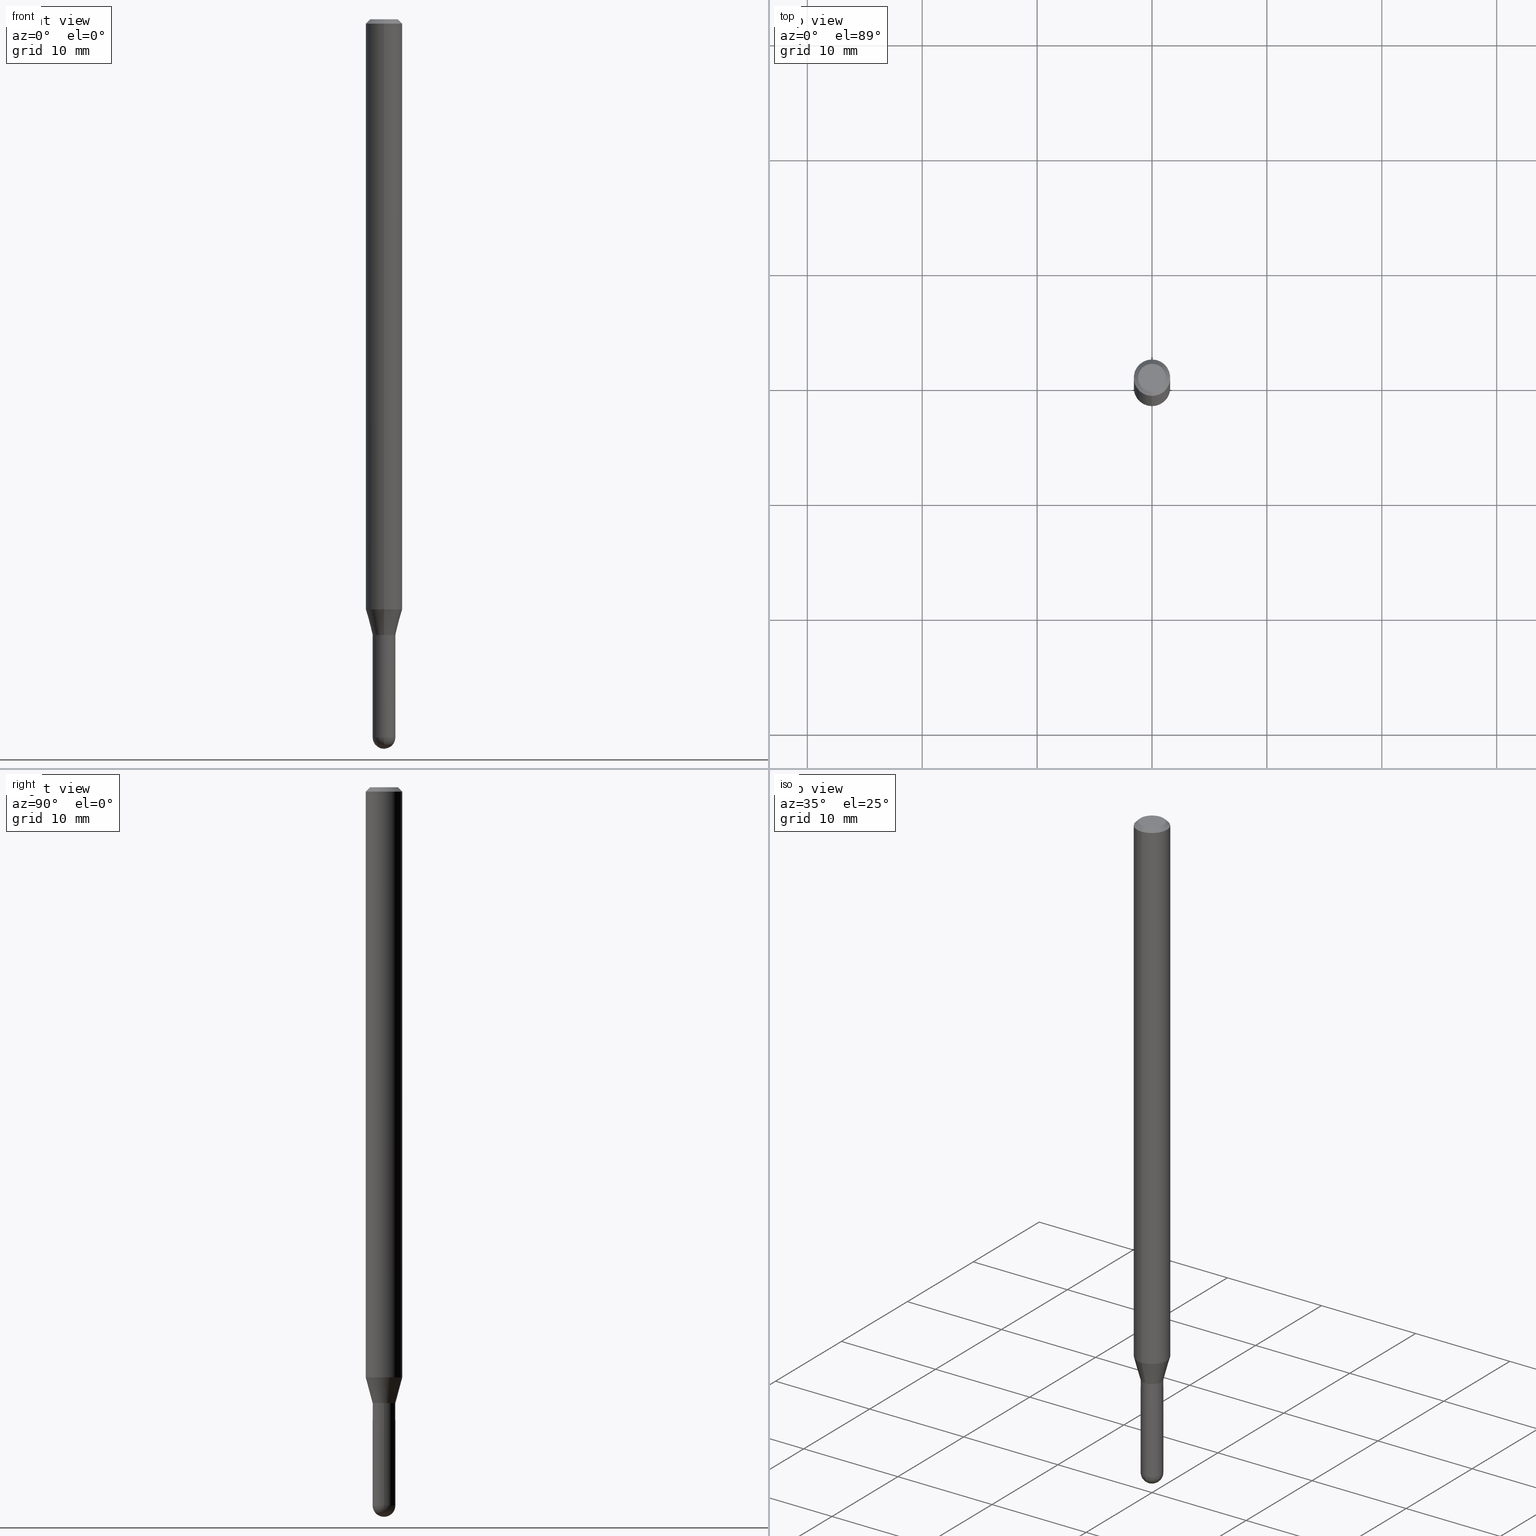
[diagram: canonical four-view strip — front | top / right | iso, engineering-drawing reading convention]
A machine part, canonical four-view strip (front | top / right | iso — engineering-drawing reading convention). The complete STEP part file that produces these views, byte-faithful:
ISO-10303-21;
HEADER;
FILE_DESCRIPTION (( 'STEP AP203' ),
    '1' );
FILE_NAME ('01516.STEP',
    '2024-03-07T19:36:13',
    ( '' ),
    ( '' ),
    'SwSTEP 2.0',
    'SolidWorks 2023',
    '' );
FILE_SCHEMA (( 'CONFIG_CONTROL_DESIGN' ));
ENDSEC;

DATA;
#1 = APPROVAL ( #183, 'UNSPECIFIED' ) ;
#2 = CARTESIAN_POINT ( 'NONE',  ( 4.440892098501117228E-16, 0.06249999999999289457, -2.022296806022132909 ) ) ;
#3 = VERTEX_POINT ( 'NONE', #70 ) ;
#4 = PERSON_AND_ORGANIZATION_ROLE ( 'creator' ) ;
#5 = AXIS2_PLACEMENT_3D ( 'NONE', #364, #484, #50 ) ;
#6 = CIRCLE ( 'NONE', #311, 0.03899999999999989586 ) ;
#7 = CARTESIAN_POINT ( 'NONE',  ( 0.03899999999999999994, -7.639361169388800962E-15, -2.110000000000000320 ) ) ;
#8 = EDGE_CURVE ( 'NONE', #512, #275, #246, .T. ) ;
#9 = DIRECTION ( 'NONE',  ( -1.000000000000000000, 6.982962677686265922E-15, -4.876176775795935793E-29 ) ) ;
#10 = AXIS2_PLACEMENT_3D ( 'NONE', #74, #266, #345 ) ;
#11 = CARTESIAN_POINT ( 'NONE',  ( 6.014963583493821915E-29, -8.597311697409657438E-15, -2.461000000000000298 ) ) ;
#12 = VERTEX_POINT ( 'NONE', #7 ) ;
#13 = DIRECTION ( 'NONE',  ( -7.105427357601000281E-15, -1.000000000000000000, 0.000000000000000000 ) ) ;
#14 = APPLICATION_PROTOCOL_DEFINITION ( 'international standard', 'config_control_design', 1994, #334 ) ;
#15 = CALENDAR_DATE ( 2024, 7, 3 ) ;
#16 = EDGE_LOOP ( 'NONE', ( #295, #110 ) ) ;
#17 = PERSON_AND_ORGANIZATION ( #310, #289 ) ;
#18 = CIRCLE ( 'NONE', #82, 0.04749999999999999362 ) ;
#19 = EDGE_CURVE ( 'NONE', #3, #379, #166, .T. ) ;
#20 = CIRCLE ( 'NONE', #294, 0.06250000000000000000 ) ;
#21 = LOCAL_TIME ( 14, 36, 13.00000000000000000, #328 ) ;
#22 = CARTESIAN_POINT ( 'NONE',  ( 5.160006538123281826E-29, -7.366929165797283704E-15, -2.109999999999999876 ) ) ;
#23 = FACE_OUTER_BOUND ( 'NONE', #504, .T. ) ;
#24 = CYLINDRICAL_SURFACE ( 'NONE', #65, 0.03899999999999999994 ) ;
#25 = MANIFOLD_SOLID_BREP ( 'Body-Move/Copy2[1]', #200 ) ;
#26 = CARTESIAN_POINT ( 'NONE',  ( 2.753353101070910328E-16, 0.03849999999999263040, -2.109999999999999876 ) ) ;
#27 = VERTEX_POINT ( 'NONE', #378 ) ;
#28 = FACE_OUTER_BOUND ( 'NONE', #240, .T. ) ;
#29 = EDGE_LOOP ( 'NONE', ( #387, #259, #470, #199 ) ) ;
#30 = EDGE_LOOP ( 'NONE', ( #238, #463 ) ) ;
#31 = AXIS2_PLACEMENT_3D ( 'NONE', #305, #261, #419 ) ;
#32 = CIRCLE ( 'NONE', #327, 0.03899999999999999994 ) ;
#33 = DIRECTION ( 'NONE',  ( -2.445500728968379930E-29, 3.491435623600608667E-15, 1.000000000000000000 ) ) ;
#34 = ADVANCED_FACE ( 'NONE', ( #335 ), #503, .T. ) ;
#35 = DIRECTION ( 'NONE',  ( -2.445500728968379930E-29, 3.491435623600608667E-15, 1.000000000000000000 ) ) ;
#36 = CONICAL_SURFACE ( 'NONE', #404, 0.03849999999999999256, 0.7853981633980202659 ) ;
#37 = LINE ( 'NONE', #282, #139 ) ;
#38 = DIRECTION ( 'NONE',  ( -1.000000000000000000, 6.982962677686265922E-15, -4.883557194083112340E-29 ) ) ;
#39 = CARTESIAN_POINT ( 'NONE',  ( 5.160006538123282947E-29, -7.366929165797283704E-15, -2.110000000000000320 ) ) ;
#40 = DIRECTION ( 'NONE',  ( -2.445500728968380210E-29, 3.491435623600608667E-15, 1.000000000000000000 ) ) ;
#41 = PERSON_AND_ORGANIZATION_ROLE ( 'design_owner' ) ;
#42 = EDGE_CURVE ( 'NONE', #420, #12, #501, .T. ) ;
#43 = CIRCLE ( 'NONE', #10, 0.03900000000000019423 ) ;
#44 = AXIS2_PLACEMENT_3D ( 'NONE', #147, #381, #71 ) ;
#45 = CARTESIAN_POINT ( 'NONE',  ( 3.668251093452573101E-31, -5.237153435400915910E-17, -0.01500000000000000812 ) ) ;
#46 = AXIS2_PLACEMENT_3D ( 'NONE', #11, #176, #13 ) ;
#47 = AXIS2_PLACEMENT_3D ( 'NONE', #257, #389, #274 ) ;
#48 = EDGE_CURVE ( 'NONE', #3, #396, #37, .T. ) ;
#49 = CARTESIAN_POINT ( 'NONE',  ( 3.606004383983001233E-16, 0.03899999999999227696, -2.110000000000000320 ) ) ;
#50 = DIRECTION ( 'NONE',  ( -6.982962677686265922E-15, -1.000000000000000000, 0.000000000000000000 ) ) ;
#51 = ORIENTED_EDGE ( 'NONE', *, *, #333, .F. ) ;
#52 = PERSON_AND_ORGANIZATION_ROLE ( 'creator' ) ;
#53 = ORIENTED_EDGE ( 'NONE', *, *, #56, .F. ) ;
#54 = UNCERTAINTY_MEASURE_WITH_UNIT (LENGTH_MEASURE( 1.000000000000000082E-05 ), #407, 'distance_accuracy_value', 'NONE');
#55 = APPROVAL_DATE_TIME ( #360, #1 ) ;
#56 = EDGE_CURVE ( 'NONE', #446, #450, #175, .T. ) ;
#57 = APPROVAL_STATUS ( 'not_yet_approved' ) ;
#58 = CYLINDRICAL_SURFACE ( 'NONE', #320, 0.03899999999999992362 ) ;
#59 = DIRECTION ( 'NONE',  ( 1.000000000000000000, -6.982962677686258033E-15, 0.000000000000000000 ) ) ;
#60 = COORDINATED_UNIVERSAL_TIME_OFFSET ( 5, 0, .BEHIND. ) ;
#61 = LINE ( 'NONE', #344, #362 ) ;
#62 = ORIENTED_EDGE ( 'NONE', *, *, #242, .F. ) ;
#63 = AXIS2_PLACEMENT_3D ( 'NONE', #235, #276, #510 ) ;
#64 = EDGE_CURVE ( 'NONE', #446, #396, #312, .T. ) ;
#65 = AXIS2_PLACEMENT_3D ( 'NONE', #346, #283, #264 ) ;
#66 = DIRECTION ( 'NONE',  ( 2.445500728968380210E-29, -3.491435623600608667E-15, -1.000000000000000000 ) ) ;
#67 = ORIENTED_EDGE ( 'NONE', *, *, #350, .T. ) ;
#68 = DIRECTION ( 'NONE',  ( -2.445500728968379930E-29, 3.491435623600608667E-15, 1.000000000000000000 ) ) ;
#69 = DIRECTION ( 'NONE',  ( -6.982962677686265922E-15, -1.000000000000000000, 3.491435623600608273E-15 ) ) ;
#70 = CARTESIAN_POINT ( 'NONE',  ( -3.773273898774340269E-16, -0.04749999999999999362, 1.569807010551772762E-16 ) ) ;
#71 = DIRECTION ( 'NONE',  ( -6.982962677686265922E-15, -1.000000000000000000, 3.483106191921935554E-15 ) ) ;
#72 = ADVANCED_FACE ( 'NONE', ( #205 ), #116, .F. ) ;
#73 = ORIENTED_EDGE ( 'NONE', *, *, #374, .F. ) ;
#74 = CARTESIAN_POINT ( 'NONE',  ( 5.158783787758798639E-29, -7.365183447985484793E-15, -2.109500000000000153 ) ) ;
#75 = CARTESIAN_POINT ( 'NONE',  ( -2.723355444297638258E-16, -0.03899999999999992362, 1.361659893204234562E-16 ) ) ;
#76 = CARTESIAN_POINT ( 'NONE',  ( -0.03899999999999999994, -7.702668932979569039E-15, -2.110000000000000320 ) ) ;
#77 = CIRCLE ( 'NONE', #367, 0.03899999999999999994 ) ;
#78 = ORIENTED_EDGE ( 'NONE', *, *, #117, .F. ) ;
#79 = DIRECTION ( 'NONE',  ( 6.982962677686265922E-15, 1.000000000000000000, -3.483106191921935554E-15 ) ) ;
#80 = DIRECTION ( 'NONE',  ( -6.982962677686266711E-15, -1.000000000000000000, 0.000000000000000000 ) ) ;
#81 = CARTESIAN_POINT ( 'NONE',  ( 6.018298732021620914E-29, -8.592535574892981353E-15, -2.460999999999999854 ) ) ;
#82 = AXIS2_PLACEMENT_3D ( 'NONE', #217, #88, #437 ) ;
#83 = ORIENTED_EDGE ( 'NONE', *, *, #278, .T. ) ;
#84 =( NAMED_UNIT ( * ) PLANE_ANGLE_UNIT ( ) SI_UNIT ( $, .RADIAN. ) );
#85 = CARTESIAN_POINT ( 'NONE',  ( 6.014963583493821915E-29, -8.597311697409657438E-15, -2.461000000000000298 ) ) ;
#86 = APPROVAL_STATUS ( 'not_yet_approved' ) ;
#87 = EDGE_CURVE ( 'NONE', #390, #97, #216, .T. ) ;
#88 = DIRECTION ( 'NONE',  ( -2.445500728968380210E-29, 3.491435623600608667E-15, 1.000000000000000000 ) ) ;
#89 = CIRCLE ( 'NONE', #339, 0.03900000000000019423 ) ;
#90 = DIRECTION ( 'NONE',  ( -6.982962677686265922E-15, -1.000000000000000000, 3.491435623600608667E-15 ) ) ;
#91 = CC_DESIGN_PERSON_AND_ORGANIZATION_ASSIGNMENT ( #128, #41, ( #358 ) ) ;
#92 = DIRECTION ( 'NONE',  ( -2.445500728968380210E-29, 3.491435623600608667E-15, 1.000000000000000000 ) ) ;
#93 = AXIS2_PLACEMENT_3D ( 'NONE', #122, #191, #193 ) ;
#94 = CC_DESIGN_SECURITY_CLASSIFICATION ( #480, ( #323 ) ) ;
#95 = DATE_AND_TIME ( #448, #21 ) ;
#96 = APPLICATION_CONTEXT ( 'configuration controlled 3d designs of mechanical parts and assemblies' ) ;
#97 = VERTEX_POINT ( 'NONE', #430 ) ;
#98 = PERSON_AND_ORGANIZATION ( #310, #289 ) ;
#99 = ORIENTED_EDGE ( 'NONE', *, *, #443, .T. ) ;
#100 = ORIENTED_EDGE ( 'NONE', *, *, #366, .T. ) ;
#101 = DIRECTION ( 'NONE',  ( 1.000000000000000000, -6.982962677686283277E-15, 0.000000000000000000 ) ) ;
#102 = VECTOR ( 'NONE', #483, 39.37007874015748143 ) ;
#103 = PRODUCT_RELATED_PRODUCT_CATEGORY ( 'detail', '', ( #358 ) ) ;
#104 = VERTEX_POINT ( 'NONE', #76 ) ;
#105 = SHAPE_DEFINITION_REPRESENTATION ( #107, #194 ) ;
#106 = LINE ( 'NONE', #431, #113 ) ;
#107 = PRODUCT_DEFINITION_SHAPE ( 'NONE', 'NONE',  #253 ) ;
#108 = ADVANCED_FACE ( 'NONE', ( #414 ), #58, .F. ) ;
#109 = ORIENTED_EDGE ( 'NONE', *, *, #42, .F. ) ;
#110 = ORIENTED_EDGE ( 'NONE', *, *, #87, .F. ) ;
#111 = CARTESIAN_POINT ( 'NONE',  ( 2.735589532676900905E-16, 0.03849999999999263040, -2.109999999999999876 ) ) ;
#112 = DIRECTION ( 'NONE',  ( -2.445500728968379930E-29, 3.491435623600608667E-15, 1.000000000000000000 ) ) ;
#113 = VECTOR ( 'NONE', #68, 39.37007874015748143 ) ;
#114 = DIRECTION ( 'NONE',  ( -1.000000000000000000, 6.982962677686265922E-15, -4.883557194083112340E-29 ) ) ;
#115 = AXIS2_PLACEMENT_3D ( 'NONE', #120, #66, #79 ) ;
#116 = CYLINDRICAL_SURFACE ( 'NONE', #432, 0.03899999999999992362 ) ;
#117 = EDGE_CURVE ( 'NONE', #195, #27, #280, .T. ) ;
#118 = EDGE_LOOP ( 'NONE', ( #220, #203, #439, #109, #119 ) ) ;
#119 = ORIENTED_EDGE ( 'NONE', *, *, #247, .T. ) ;
#120 = CARTESIAN_POINT ( 'NONE',  ( 3.668251093452573101E-31, -5.237153435400915910E-17, -0.01500000000000000812 ) ) ;
#121 = DIRECTION ( 'NONE',  ( -2.445500728968380210E-29, 3.491435623600608667E-15, 1.000000000000000000 ) ) ;
#122 = CARTESIAN_POINT ( 'NONE',  ( 0.000000000000000000, 0.000000000000000000, 0.000000000000000000 ) ) ;
#123 = CIRCLE ( 'NONE', #408, 0.03899999999999999994 ) ;
#124 = LENGTH_MEASURE_WITH_UNIT ( LENGTH_MEASURE( 0.02539999999999999897 ), #479 );
#125 = APPROVAL_DATE_TIME ( #95, #270 ) ;
#126 = EDGE_CURVE ( 'NONE', #104, #12, #230, .T. ) ;
#127 = FACE_OUTER_BOUND ( 'NONE', #465, .T. ) ;
#128 = PERSON_AND_ORGANIZATION ( #310, #289 ) ;
#129 = CARTESIAN_POINT ( 'NONE',  ( 5.158783787758798639E-29, -7.365183447985484793E-15, -2.109500000000000153 ) ) ;
#130 = AXIS2_PLACEMENT_3D ( 'NONE', #81, #302, #332 ) ;
#131 = CARTESIAN_POINT ( 'NONE',  ( -0.03899999999999999994, -7.702668932979569039E-15, -2.460999999999999854 ) ) ;
#132 = ADVANCED_FACE ( 'NONE', ( #498 ), #142, .F. ) ;
#133 = ADVANCED_FACE ( 'NONE', ( #23 ), #226, .T. ) ;
#134 = COORDINATED_UNIVERSAL_TIME_OFFSET ( 5, 0, .BEHIND. ) ;
#135 = VERTEX_POINT ( 'NONE', #343 ) ;
#136 = CARTESIAN_POINT ( 'NONE',  ( 0.000000000000000000, 0.000000000000000000, 0.000000000000000000 ) ) ;
#137 = DIRECTION ( 'NONE',  ( -2.445468806185136597E-29, 3.491481338843145583E-15, 1.000000000000000000 ) ) ;
#138 = CC_DESIGN_DATE_AND_TIME_ASSIGNMENT ( #329, #411, ( #253 ) ) ;
#139 = VECTOR ( 'NONE', #359, 39.37007874015748143 ) ;
#140 = ORIENTED_EDGE ( 'NONE', *, *, #48, .F. ) ;
#141 = EDGE_CURVE ( 'NONE', #275, #446, #500, .T. ) ;
#142 = PLANE ( 'NONE',  #31 ) ;
#143 = ORIENTED_EDGE ( 'NONE', *, *, #315, .T. ) ;
#144 = CARTESIAN_POINT ( 'NONE',  ( 2.167322836201587067E-46, -3.094281702115643648E-32, -8.862491065851607924E-18 ) ) ;
#145 = CARTESIAN_POINT ( 'NONE',  ( 3.840629472727447874E-16, 0.04749999999999999362, -1.747056831868805136E-16 ) ) ;
#146 = ORIENTED_EDGE ( 'NONE', *, *, #227, .T. ) ;
#147 = CARTESIAN_POINT ( 'NONE',  ( 3.668251093452573101E-31, -5.237153435400915910E-17, -0.01500000000000000812 ) ) ;
#148 = ORIENTED_EDGE ( 'NONE', *, *, #315, .F. ) ;
#149 = ADVANCED_FACE ( 'NONE', ( #368 ), #447, .T. ) ;
#150 = LOCAL_TIME ( 14, 36, 13.00000000000000000, #134 ) ;
#151 = VECTOR ( 'NONE', #467, 39.37007874015748143 ) ;
#152 = ORIENTED_EDGE ( 'NONE', *, *, #181, .T. ) ;
#153 = CARTESIAN_POINT ( 'NONE',  ( 2.771116669464384311E-16, 0.03899999999999992362, -1.361659893204234562E-16 ) ) ;
#154 = AXIS2_PLACEMENT_3D ( 'NONE', #505, #458, #313 ) ;
#155 = ORIENTED_EDGE ( 'NONE', *, *, #366, .F. ) ;
#156 = CIRCLE ( 'NONE', #290, 0.03849999999999999256 ) ;
#157 = CARTESIAN_POINT ( 'NONE',  ( -4.364351673553916201E-16, -0.06250000000000000000, 2.182147264750380417E-16 ) ) ;
#158 = FACE_OUTER_BOUND ( 'NONE', #219, .T. ) ;
#159 = VERTEX_POINT ( 'NONE', #131 ) ;
#160 = FACE_OUTER_BOUND ( 'NONE', #118, .T. ) ;
#161 = LINE ( 'NONE', #75, #380 ) ;
#162 = CC_DESIGN_PERSON_AND_ORGANIZATION_ASSIGNMENT ( #98, #221, ( #323 ) ) ;
#163 = EDGE_LOOP ( 'NONE', ( #51, #449, #471, #239 ) ) ;
#164 = CARTESIAN_POINT ( 'NONE',  ( 6.014963583493821915E-29, -8.597311697409657438E-15, -2.461000000000000298 ) ) ;
#165 = DIRECTION ( 'NONE',  ( 1.000000000000000000, -6.982962677686265922E-15, 4.883557194083112340E-29 ) ) ;
#166 = CIRCLE ( 'NONE', #338, 0.04749999999999999362 ) ;
#167 = ORIENTED_EDGE ( 'NONE', *, *, #438, .T. ) ;
#168 = COORDINATED_UNIVERSAL_TIME_OFFSET ( 5, 0, .BEHIND. ) ;
#169 = ADVANCED_FACE ( 'NONE', ( #250 ), #215, .F. ) ;
#170 = DIRECTION ( 'NONE',  ( -2.445500728968380210E-29, 3.491435623600608667E-15, 1.000000000000000000 ) ) ;
#171 = MECHANICAL_CONTEXT ( 'NONE', #96, 'mechanical' ) ;
#172 = ADVANCED_FACE ( 'NONE', ( #218 ), #444, .T. ) ;
#173 = DIRECTION ( 'NONE',  ( -2.445500728968380210E-29, 3.491435623600608667E-15, 1.000000000000000000 ) ) ;
#174 = APPROVAL_PERSON_ORGANIZATION ( #415, #373, #337 ) ;
#175 = CIRCLE ( 'NONE', #476, 0.06250000000000000000 ) ;
#176 = DIRECTION ( 'NONE',  ( -1.000000000000000000, 7.105427357601001070E-15, -4.926315508542082329E-29 ) ) ;
#177 = VECTOR ( 'NONE', #232, 39.37007874015748854 ) ;
#178 = PERSON_AND_ORGANIZATION ( #310, #289 ) ;
#179 = ORIENTED_EDGE ( 'NONE', *, *, #117, .T. ) ;
#180 = ORIENTED_EDGE ( 'NONE', *, *, #64, .F. ) ;
#181 = EDGE_CURVE ( 'NONE', #490, #396, #20, .T. ) ;
#182 = CIRCLE ( 'NONE', #44, 0.06250000000000000000 ) ;
#183 = APPROVAL_STATUS ( 'not_yet_approved' ) ;
#184 = CC_DESIGN_DATE_AND_TIME_ASSIGNMENT ( #377, #263, ( #480 ) ) ;
#185 = ADVANCED_FACE ( 'NONE', ( #435 ), #457, .F. ) ;
#186 = ORIENTED_EDGE ( 'NONE', *, *, #287, .F. ) ;
#187 = AXIS2_PLACEMENT_3D ( 'NONE', #39, #170, #285 ) ;
#188 = SPHERICAL_SURFACE ( 'NONE', #330, 0.03899999999999989586 ) ;
#189 = DIRECTION ( 'NONE',  ( 6.982962677686265922E-15, 1.000000000000000000, -3.483106191921935554E-15 ) ) ;
#190 = ORIENTED_EDGE ( 'NONE', *, *, #227, .F. ) ;
#191 = DIRECTION ( 'NONE',  ( -2.445468806185136597E-29, 3.491481338843145583E-15, 1.000000000000000000 ) ) ;
#192 = EDGE_CURVE ( 'NONE', #331, #135, #43, .T. ) ;
#193 = DIRECTION ( 'NONE',  ( 1.000000000000000000, -6.982962677686265922E-15, 4.876176775795935793E-29 ) ) ;
#194 = ADVANCED_BREP_SHAPE_REPRESENTATION ( '01516', ( #25, #365, #258 ), #509 ) ;
#195 = VERTEX_POINT ( 'NONE', #385 ) ;
#196 = CARTESIAN_POINT ( 'NONE',  ( -4.364351673553912750E-16, -0.06250000000000005551, -0.01499999999999979128 ) ) ;
#197 = ORIENTED_EDGE ( 'NONE', *, *, #278, .F. ) ;
#198 = EDGE_LOOP ( 'NONE', ( #155, #489, #400, #383 ) ) ;
#199 = ORIENTED_EDGE ( 'NONE', *, *, #192, .T. ) ;
#200 = CLOSED_SHELL ( 'NONE', ( #301, #341, #169, #363, #34 ) ) ;
#201 = CARTESIAN_POINT ( 'NONE',  ( 0.03899999999999999994, -2.723355444297643682E-16, 1.901708942560414931E-30 ) ) ;
#202 = LINE ( 'NONE', #153, #248 ) ;
#203 = ORIENTED_EDGE ( 'NONE', *, *, #374, .T. ) ;
#204 = VECTOR ( 'NONE', #319, 39.37007874015748143 ) ;
#205 = FACE_OUTER_BOUND ( 'NONE', #29, .T. ) ;
#206 = DIRECTION ( 'NONE',  ( -6.982962677686265922E-15, -1.000000000000000000, 4.370956789862821150E-15 ) ) ;
#207 = COORDINATED_UNIVERSAL_TIME_OFFSET ( 5, 0, .BEHIND. ) ;
#208 = VERTEX_POINT ( 'NONE', #391 ) ;
#209 = CC_DESIGN_APPROVAL ( #270, ( #323 ) ) ;
#210 = AXIS2_PLACEMENT_3D ( 'NONE', #291, #409, #9 ) ;
#211 = DIRECTION ( 'NONE',  ( 1.000000000000000000, 0.000000000000000000, 0.000000000000000000 ) ) ;
#212 = LOCAL_TIME ( 14, 36, 13.00000000000000000, #168 ) ;
#213 = EDGE_CURVE ( 'NONE', #12, #104, #77, .T. ) ;
#214 = CARTESIAN_POINT ( 'NONE',  ( 0.000000000000000000, 0.000000000000000000, 0.000000000000000000 ) ) ;
#215 = PLANE ( 'NONE',  #210 ) ;
#216 = CIRCLE ( 'NONE', #63, 0.03849999999999999256 ) ;
#217 = CARTESIAN_POINT ( 'NONE',  ( 2.167322836201587067E-46, -3.094281702115643648E-32, -8.862491065851607924E-18 ) ) ;
#218 = FACE_OUTER_BOUND ( 'NONE', #198, .T. ) ;
#219 = EDGE_LOOP ( 'NONE', ( #148, #397, #99, #197 ) ) ;
#220 = ORIENTED_EDGE ( 'NONE', *, *, #287, .T. ) ;
#221 = PERSON_AND_ORGANIZATION_ROLE ( 'design_supplier' ) ;
#222 = EDGE_CURVE ( 'NONE', #275, #512, #406, .T. ) ;
#223 = ORIENTED_EDGE ( 'NONE', *, *, #477, .F. ) ;
#224 = FACE_OUTER_BOUND ( 'NONE', #306, .T. ) ;
#225 = CALENDAR_DATE ( 2024, 7, 3 ) ;
#226 = CONICAL_SURFACE ( 'NONE', #421, 0.06250000000000000000, 0.7853981633974483900 ) ;
#227 = EDGE_CURVE ( 'NONE', #195, #208, #6, .T. ) ;
#228 = SPHERICAL_SURFACE ( 'NONE', #487, 0.03899999999999989586 ) ;
#229 = CARTESIAN_POINT ( 'NONE',  ( 3.668251093452573101E-31, -5.237153435400915910E-17, -0.01500000000000000812 ) ) ;
#230 = CIRCLE ( 'NONE', #395, 0.03899999999999999994 ) ;
#231 = ADVANCED_FACE ( 'NONE', ( #127 ), #403, .T. ) ;
#232 = DIRECTION ( 'NONE',  ( -4.937700262167370586E-15, -0.7071067811869493624, 0.7071067811861454500 ) ) ;
#233 = DIRECTION ( 'NONE',  ( -2.445500728968380210E-29, 3.491435623600608667E-15, 1.000000000000000000 ) ) ;
#234 = ORIENTED_EDGE ( 'NONE', *, *, #333, .T. ) ;
#235 = CARTESIAN_POINT ( 'NONE',  ( 5.160006538123281826E-29, -7.366929165797283704E-15, -2.109999999999999876 ) ) ;
#236 = LINE ( 'NONE', #309, #254 ) ;
#237 = CARTESIAN_POINT ( 'NONE',  ( -2.723355444297103312E-16, -0.03900000000000701517, -2.110000000000000320 ) ) ;
#238 = ORIENTED_EDGE ( 'NONE', *, *, #493, .T. ) ;
#239 = ORIENTED_EDGE ( 'NONE', *, *, #461, .F. ) ;
#240 = EDGE_LOOP ( 'NONE', ( #190, #179, #317, #186 ) ) ;
#241 = CARTESIAN_POINT ( 'NONE',  ( 4.945528313317552606E-29, -7.060719110039404630E-15, -2.022296806022132909 ) ) ;
#242 = EDGE_CURVE ( 'NONE', #275, #331, #161, .T. ) ;
#243 = CARTESIAN_POINT ( 'NONE',  ( 5.160006538123282947E-29, -7.366929165797283704E-15, -2.110000000000000320 ) ) ;
#244 = DIRECTION ( 'NONE',  ( -2.445500728968380210E-29, 3.491435623600608667E-15, 1.000000000000000000 ) ) ;
#245 = DIRECTION ( 'NONE',  ( 0.000000000000000000, 0.000000000000000000, 1.000000000000000000 ) ) ;
#246 = CIRCLE ( 'NONE', #495, 0.03899999999999964606 ) ;
#247 = EDGE_CURVE ( 'NONE', #420, #208, #434, .T. ) ;
#248 = VECTOR ( 'NONE', #33, 39.37007874015748143 ) ;
#249 = DIRECTION ( 'NONE',  ( 1.000000000000000000, -6.982962677686283277E-15, 0.000000000000000000 ) ) ;
#250 = FACE_OUTER_BOUND ( 'NONE', #433, .T. ) ;
#251 = CLOSED_SHELL ( 'NONE', ( #108, #293, #454, #417, #231, #149, #172, #133, #132, #185, #405, #72 ) ) ;
#252 = AXIS2_PLACEMENT_3D ( 'NONE', #376, #318, #80 ) ;
#253 = PRODUCT_DEFINITION ( 'UNKNOWN', '', #323, #507 ) ;
#254 = VECTOR ( 'NONE', #424, 39.37007874015748143 ) ;
#255 = ORIENTED_EDGE ( 'NONE', *, *, #247, .F. ) ;
#256 = EDGE_CURVE ( 'NONE', #159, #27, #32, .T. ) ;
#257 = CARTESIAN_POINT ( 'NONE',  ( 6.018298732021620914E-29, -8.592535574892981353E-15, -2.460999999999999854 ) ) ;
#258 = AXIS2_PLACEMENT_3D ( 'NONE', #475, #245, #211 ) ;
#259 = ORIENTED_EDGE ( 'NONE', *, *, #222, .F. ) ;
#260 = CYLINDRICAL_SURFACE ( 'NONE', #154, 0.06250000000000000000 ) ;
#261 = DIRECTION ( 'NONE',  ( 2.445500728968379930E-29, -3.491435623600608667E-15, -1.000000000000000000 ) ) ;
#262 = ORIENTED_EDGE ( 'NONE', *, *, #443, .F. ) ;
#263 = DATE_TIME_ROLE ( 'classification_date' ) ;
#264 = DIRECTION ( 'NONE',  ( 1.000000000000000000, -6.982962677686265922E-15, 4.876176775795935793E-29 ) ) ;
#265 = AXIS2_PLACEMENT_3D ( 'NONE', #399, #112, #269 ) ;
#266 = DIRECTION ( 'NONE',  ( -2.445500728968380210E-29, 3.491435623600608667E-15, 1.000000000000000000 ) ) ;
#267 = EDGE_CURVE ( 'NONE', #27, #420, #281, .T. ) ;
#268 = FACE_OUTER_BOUND ( 'NONE', #494, .T. ) ;
#269 = DIRECTION ( 'NONE',  ( -6.982962677686265922E-15, -1.000000000000000000, 3.491435623600608667E-15 ) ) ;
#270 = APPROVAL ( #86, 'UNSPECIFIED' ) ;
#271 = CARTESIAN_POINT ( 'NONE',  ( 0.000000000000000000, 0.000000000000000000, 0.000000000000000000 ) ) ;
#272 = ORIENTED_EDGE ( 'NONE', *, *, #126, .T. ) ;
#273 = CARTESIAN_POINT ( 'NONE',  ( 6.014963583493821915E-29, -8.597311697409657438E-15, -2.461000000000000298 ) ) ;
#274 = DIRECTION ( 'NONE',  ( 1.000000000000000000, -6.982962677686283277E-15, 0.000000000000000000 ) ) ;
#275 = VERTEX_POINT ( 'NONE', #237 ) ;
#276 = DIRECTION ( 'NONE',  ( -2.445500728968380210E-29, 3.491435623600608667E-15, 1.000000000000000000 ) ) ;
#277 = LINE ( 'NONE', #111, #322 ) ;
#278 = EDGE_CURVE ( 'NONE', #135, #331, #89, .T. ) ;
#279 = EDGE_LOOP ( 'NONE', ( #73, #348, #297, #351, #459 ) ) ;
#280 = CIRCLE ( 'NONE', #46, 0.03899999999999989586 ) ;
#281 = CIRCLE ( 'NONE', #47, 0.03899999999999999994 ) ;
#282 = CARTESIAN_POINT ( 'NONE',  ( -4.287811248607203282E-16, -0.06250000000000005551, -0.01499999999999979128 ) ) ;
#283 = DIRECTION ( 'NONE',  ( -2.445468806185136597E-29, 3.491481338843145583E-15, 1.000000000000000000 ) ) ;
#284 = CONICAL_SURFACE ( 'NONE', #115, 0.06250000000000000000, 0.7853981633974483900 ) ;
#285 = DIRECTION ( 'NONE',  ( -6.982962677686265922E-15, -1.000000000000000000, 0.000000000000000000 ) ) ;
#286 = PERSON_AND_ORGANIZATION ( #310, #289 ) ;
#287 = EDGE_CURVE ( 'NONE', #208, #159, #123, .T. ) ;
#288 =( NAMED_UNIT ( * ) SI_UNIT ( $, .STERADIAN. ) SOLID_ANGLE_UNIT ( ) );
#289 = ORGANIZATION ( 'UNSPECIFIED', 'UNSPECIFIED', '' ) ;
#290 = AXIS2_PLACEMENT_3D ( 'NONE', #347, #233, #422 ) ;
#291 = CARTESIAN_POINT ( 'NONE',  ( 2.723355444298159400E-16, 0.03899999999999263084, -2.110000000000000320 ) ) ;
#292 = CARTESIAN_POINT ( 'NONE',  ( -2.723355444297103312E-16, -0.03900000000000701517, -2.110000000000000320 ) ) ;
#293 = ADVANCED_FACE ( 'NONE', ( #224 ), #478, .T. ) ;
#294 = AXIS2_PLACEMENT_3D ( 'NONE', #45, #121, #460 ) ;
#295 = ORIENTED_EDGE ( 'NONE', *, *, #402, .F. ) ;
#296 = DIMENSIONAL_EXPONENTS ( 1.000000000000000000, 0.000000000000000000, 0.000000000000000000, 0.000000000000000000, 0.000000000000000000, 0.000000000000000000, 0.000000000000000000 ) ;
#297 = ORIENTED_EDGE ( 'NONE', *, *, #267, .T. ) ;
#298 = PERSON_AND_ORGANIZATION ( #310, #289 ) ;
#299 = ORIENTED_EDGE ( 'NONE', *, *, #477, .T. ) ;
#300 = DIRECTION ( 'NONE',  ( -2.445500728968380210E-29, 3.491435623600608667E-15, 1.000000000000000000 ) ) ;
#301 = ADVANCED_FACE ( 'NONE', ( #160 ), #24, .T. ) ;
#302 = DIRECTION ( 'NONE',  ( -2.445468806185136597E-29, 3.491481338843145583E-15, 1.000000000000000000 ) ) ;
#303 = AXIS2_PLACEMENT_3D ( 'NONE', #214, #173, #90 ) ;
#304 = CC_DESIGN_PERSON_AND_ORGANIZATION_ASSIGNMENT ( #286, #52, ( #323 ) ) ;
#305 = CARTESIAN_POINT ( 'NONE',  ( 3.316907271900976096E-16, 0.04749999999999999362, -1.702744376539547043E-16 ) ) ;
#306 = EDGE_LOOP ( 'NONE', ( #508, #143, #355, #262 ) ) ;
#307 = ORIENTED_EDGE ( 'NONE', *, *, #48, .T. ) ;
#308 = CARTESIAN_POINT ( 'NONE',  ( -2.723355444297150644E-16, -0.03900000000000769518, -2.109500000000000153 ) ) ;
#309 = CARTESIAN_POINT ( 'NONE',  ( -0.03899999999999999994, 2.771116669464390721E-16, -1.918384685199413078E-30 ) ) ;
#310 = PERSON ( 'UNSPECIFIED', 'UNSPECIFIED', 'UNSPECIFIED', ('UNSPECIFIED'), ('UNSPECIFIED'), ('UNSPECIFIED') ) ;
#311 = AXIS2_PLACEMENT_3D ( 'NONE', #85, #165, #326 ) ;
#312 = LINE ( 'NONE', #157, #151 ) ;
#313 = DIRECTION ( 'NONE',  ( -6.982962677686265922E-15, -1.000000000000000000, 3.491435623600608667E-15 ) ) ;
#314 = ORIENTED_EDGE ( 'NONE', *, *, #56, .T. ) ;
#315 = EDGE_CURVE ( 'NONE', #390, #135, #277, .T. ) ;
#316 = CARTESIAN_POINT ( 'NONE',  ( -4.364351673553424642E-16, -0.06250000000000709155, -2.022296806022132465 ) ) ;
#317 = ORIENTED_EDGE ( 'NONE', *, *, #256, .F. ) ;
#318 = DIRECTION ( 'NONE',  ( -2.445500728968380210E-29, 3.491435623600608667E-15, 1.000000000000000000 ) ) ;
#319 = DIRECTION ( 'NONE',  ( 4.937700262164548042E-15, 0.7071067811865451302, -0.7071067811865499042 ) ) ;
#320 = AXIS2_PLACEMENT_3D ( 'NONE', #136, #452, #370 ) ;
#321 = LOCAL_TIME ( 14, 36, 13.00000000000000000, #60 ) ;
#322 = VECTOR ( 'NONE', #388, 39.37007874015748854 ) ;
#323 = PRODUCT_DEFINITION_FORMATION_WITH_SPECIFIED_SOURCE ( 'ANY', '', #358, .NOT_KNOWN. ) ;
#324 = AXIS2_PLACEMENT_3D ( 'NONE', #243, #244, #429 ) ;
#325 = APPROVAL_ROLE ( '' ) ;
#326 = DIRECTION ( 'NONE',  ( 6.982962677686265922E-15, 1.000000000000000000, 0.000000000000000000 ) ) ;
#327 = AXIS2_PLACEMENT_3D ( 'NONE', #492, #137, #101 ) ;
#328 = COORDINATED_UNIVERSAL_TIME_OFFSET ( 5, 0, .BEHIND. ) ;
#329 = DATE_AND_TIME ( #488, #212 ) ;
#330 = AXIS2_PLACEMENT_3D ( 'NONE', #164, #38, #426 ) ;
#331 = VERTEX_POINT ( 'NONE', #308 ) ;
#332 = DIRECTION ( 'NONE',  ( 1.000000000000000000, -6.982962677686283277E-15, 0.000000000000000000 ) ) ;
#333 = EDGE_CURVE ( 'NONE', #512, #450, #61, .T. ) ;
#334 = APPLICATION_CONTEXT ( 'configuration controlled 3d designs of mechanical parts and assemblies' ) ;
#335 = FACE_OUTER_BOUND ( 'NONE', #279, .T. ) ;
#336 = CC_DESIGN_PERSON_AND_ORGANIZATION_ASSIGNMENT ( #17, #440, ( #480 ) ) ;
#337 = APPROVAL_ROLE ( '' ) ;
#338 = AXIS2_PLACEMENT_3D ( 'NONE', #144, #300, #451 ) ;
#339 = AXIS2_PLACEMENT_3D ( 'NONE', #129, #442, #482 ) ;
#340 = DIRECTION ( 'NONE',  ( -2.445468806185136597E-29, 3.491481338843145583E-15, 1.000000000000000000 ) ) ;
#341 = ADVANCED_FACE ( 'NONE', ( #28 ), #228, .T. ) ;
#342 = DIRECTION ( 'NONE',  ( -2.445500728968380210E-29, 3.491435623600608667E-15, 1.000000000000000000 ) ) ;
#343 = CARTESIAN_POINT ( 'NONE',  ( 2.771116669464910383E-16, 0.03899999999999268635, -2.109500000000000153 ) ) ;
#344 = CARTESIAN_POINT ( 'NONE',  ( 2.771116669464881294E-16, 0.03899999999999227696, -2.110000000000000320 ) ) ;
#345 = DIRECTION ( 'NONE',  ( -6.982962677686266711E-15, -1.000000000000000000, 0.000000000000000000 ) ) ;
#346 = CARTESIAN_POINT ( 'NONE',  ( 0.000000000000000000, 0.000000000000000000, 0.000000000000000000 ) ) ;
#347 = CARTESIAN_POINT ( 'NONE',  ( 5.160006538123281826E-29, -7.366929165797283704E-15, -2.109999999999999876 ) ) ;
#348 = ORIENTED_EDGE ( 'NONE', *, *, #256, .T. ) ;
#349 = CARTESIAN_POINT ( 'NONE',  ( 5.159939181050639071E-29, -7.367025624959036939E-15, -2.110000000000000320 ) ) ;
#350 = EDGE_CURVE ( 'NONE', #396, #490, #182, .T. ) ;
#351 = ORIENTED_EDGE ( 'NONE', *, *, #42, .T. ) ;
#352 = CARTESIAN_POINT ( 'NONE',  ( 4.945528313317552606E-29, -7.060719110039404630E-15, -2.022296806022132909 ) ) ;
#353 = CIRCLE ( 'NONE', #466, 0.06250000000000000000 ) ;
#354 = LINE ( 'NONE', #511, #177 ) ;
#355 = ORIENTED_EDGE ( 'NONE', *, *, #192, .F. ) ;
#356 = DIRECTION ( 'NONE',  ( -2.445468806185136597E-29, 3.491481338843145583E-15, 1.000000000000000000 ) ) ;
#357 = LINE ( 'NONE', #499, #204 ) ;
#358 = PRODUCT ( '01516', '01516', '', ( #171 ) ) ;
#359 = DIRECTION ( 'NONE',  ( -4.851104656540964275E-15, -0.7071067811865500152, -0.7071067811865450192 ) ) ;
#360 = DATE_AND_TIME ( #15, #436 ) ;
#361 = CC_DESIGN_APPROVAL ( #373, ( #480 ) ) ;
#362 = VECTOR ( 'NONE', #469, 39.37007874015748143 ) ;
#363 = ADVANCED_FACE ( 'NONE', ( #268 ), #188, .T. ) ;
#364 = CARTESIAN_POINT ( 'NONE',  ( 5.160006538123282947E-29, -7.366929165797283704E-15, -2.110000000000000320 ) ) ;
#365 = MANIFOLD_SOLID_BREP ( 'Body-Move/Copy2[2]', #251 ) ;
#366 = EDGE_CURVE ( 'NONE', #450, #490, #106, .T. ) ;
#367 = AXIS2_PLACEMENT_3D ( 'NONE', #349, #356, #427 ) ;
#368 = FACE_OUTER_BOUND ( 'NONE', #163, .T. ) ;
#369 = CARTESIAN_POINT ( 'NONE',  ( 5.160006538123282947E-29, -7.366929165797283704E-15, -2.110000000000000320 ) ) ;
#370 = DIRECTION ( 'NONE',  ( -6.982962677686265922E-15, -1.000000000000000000, 3.491435623600608273E-15 ) ) ;
#371 = DIRECTION ( 'NONE',  ( -6.982962677686265922E-15, -1.000000000000000000, 0.000000000000000000 ) ) ;
#372 = SECURITY_CLASSIFICATION_LEVEL ( 'unclassified' ) ;
#373 = APPROVAL ( #57, 'UNSPECIFIED' ) ;
#374 = EDGE_CURVE ( 'NONE', #159, #104, #236, .T. ) ;
#375 = ORIENTED_EDGE ( 'NONE', *, *, #222, .T. ) ;
#376 = CARTESIAN_POINT ( 'NONE',  ( 5.160006538123281826E-29, -7.366929165797283704E-15, -2.109999999999999876 ) ) ;
#377 = DATE_AND_TIME ( #225, #150 ) ;
#378 = CARTESIAN_POINT ( 'NONE',  ( -2.771116669463784777E-16, -0.03900000000000854172, -2.460999999999999854 ) ) ;
#379 = VERTEX_POINT ( 'NONE', #145 ) ;
#380 = VECTOR ( 'NONE', #35, 39.37007874015748143 ) ;
#381 = DIRECTION ( 'NONE',  ( -2.445500728968380210E-29, 3.491435623600608667E-15, 1.000000000000000000 ) ) ;
#382 = DIRECTION ( 'NONE',  ( 2.445500728968380210E-29, -3.491435623600608667E-15, -1.000000000000000000 ) ) ;
#383 = ORIENTED_EDGE ( 'NONE', *, *, #181, .F. ) ;
#384 = DIRECTION ( 'NONE',  ( -2.445500728968380210E-29, 3.491435623600608667E-15, 1.000000000000000000 ) ) ;
#385 = CARTESIAN_POINT ( 'NONE',  ( 6.112004441198941993E-29, -8.731091408366202985E-15, -2.500000000000000000 ) ) ;
#386 = APPROVAL_DATE_TIME ( #413, #373 ) ;
#387 = ORIENTED_EDGE ( 'NONE', *, *, #438, .F. ) ;
#388 = DIRECTION ( 'NONE',  ( 5.024295867790934632E-15, 0.7071067811869542474, 0.7071067811861405650 ) ) ;
#389 = DIRECTION ( 'NONE',  ( -2.445468806185136597E-29, 3.491481338843145583E-15, 1.000000000000000000 ) ) ;
#390 = VERTEX_POINT ( 'NONE', #26 ) ;
#391 = CARTESIAN_POINT ( 'NONE',  ( 2.723355444298241737E-16, 0.03899999999999134714, -2.460999999999999854 ) ) ;
#392 = ORIENTED_EDGE ( 'NONE', *, *, #493, .F. ) ;
#393 = DIRECTION ( 'NONE',  ( -6.982962677686265922E-15, -1.000000000000000000, 4.370956789862821150E-15 ) ) ;
#394 = CARTESIAN_POINT ( 'NONE',  ( 0.03899999999999999994, -8.252116144355773169E-15, -2.460999999999999854 ) ) ;
#395 = AXIS2_PLACEMENT_3D ( 'NONE', #416, #340, #59 ) ;
#396 = VERTEX_POINT ( 'NONE', #196 ) ;
#397 = ORIENTED_EDGE ( 'NONE', *, *, #87, .T. ) ;
#398 = FACE_OUTER_BOUND ( 'NONE', #506, .T. ) ;
#399 = CARTESIAN_POINT ( 'NONE',  ( 5.160006538123282947E-29, -7.366929165797283704E-15, -2.110000000000000320 ) ) ;
#400 = ORIENTED_EDGE ( 'NONE', *, *, #64, .T. ) ;
#401 = APPLICATION_PROTOCOL_DEFINITION ( 'international standard', 'config_control_design', 1994, #96 ) ;
#402 = EDGE_CURVE ( 'NONE', #97, #390, #156, .T. ) ;
#403 = CONICAL_SURFACE ( 'NONE', #324, 0.03899999999999964606, 0.2617993877991566798 ) ;
#404 = AXIS2_PLACEMENT_3D ( 'NONE', #22, #342, #464 ) ;
#405 = ADVANCED_FACE ( 'NONE', ( #158 ), #36, .T. ) ;
#406 = CIRCLE ( 'NONE', #187, 0.03899999999999964606 ) ;
#407 =( CONVERSION_BASED_UNIT ( 'INCH', #124 ) LENGTH_UNIT ( ) NAMED_UNIT ( #296 ) );
#408 = AXIS2_PLACEMENT_3D ( 'NONE', #445, #410, #249 ) ;
#409 = DIRECTION ( 'NONE',  ( 2.438088387897960049E-29, -3.491481338843145188E-15, -1.000000000000000000 ) ) ;
#410 = DIRECTION ( 'NONE',  ( -2.445468806185136597E-29, 3.491481338843145583E-15, 1.000000000000000000 ) ) ;
#411 = DATE_TIME_ROLE ( 'creation_date' ) ;
#412 = CC_DESIGN_PERSON_AND_ORGANIZATION_ASSIGNMENT ( #178, #4, ( #253 ) ) ;
#413 = DATE_AND_TIME ( #491, #321 ) ;
#414 = FACE_OUTER_BOUND ( 'NONE', #456, .T. ) ;
#415 = PERSON_AND_ORGANIZATION ( #310, #289 ) ;
#416 = CARTESIAN_POINT ( 'NONE',  ( 5.159939181050639071E-29, -7.367025624959036939E-15, -2.110000000000000320 ) ) ;
#417 = ADVANCED_FACE ( 'NONE', ( #398 ), #260, .T. ) ;
#418 = CARTESIAN_POINT ( 'NONE',  ( 4.440892098501123144E-16, 0.06249999999999995143, -0.01500000000000022669 ) ) ;
#419 = DIRECTION ( 'NONE',  ( 6.982962677686265922E-15, 1.000000000000000000, -3.491435623600608667E-15 ) ) ;
#420 = VERTEX_POINT ( 'NONE', #394 ) ;
#421 = AXIS2_PLACEMENT_3D ( 'NONE', #229, #382, #189 ) ;
#422 = DIRECTION ( 'NONE',  ( -6.982962677686266711E-15, -1.000000000000000000, 0.000000000000000000 ) ) ;
#423 = ORIENTED_EDGE ( 'NONE', *, *, #350, .F. ) ;
#424 = DIRECTION ( 'NONE',  ( -2.445468806185136877E-29, 3.491481338843145188E-15, 1.000000000000000000 ) ) ;
#425 = ORIENTED_EDGE ( 'NONE', *, *, #19, .F. ) ;
#426 = DIRECTION ( 'NONE',  ( 6.982962677686265922E-15, 1.000000000000000000, 0.000000000000000000 ) ) ;
#427 = DIRECTION ( 'NONE',  ( 1.000000000000000000, -6.982962677686258033E-15, 0.000000000000000000 ) ) ;
#428 = ORIENTED_EDGE ( 'NONE', *, *, #8, .F. ) ;
#429 = DIRECTION ( 'NONE',  ( -6.982962677686265922E-15, -1.000000000000000000, 0.000000000000000000 ) ) ;
#430 = CARTESIAN_POINT ( 'NONE',  ( -2.688440630908695921E-16, -0.03850000000000736167, -2.109999999999999876 ) ) ;
#431 = CARTESIAN_POINT ( 'NONE',  ( 4.440892098500625669E-16, 0.06250000000000000000, -2.182147264750380417E-16 ) ) ;
#432 = AXIS2_PLACEMENT_3D ( 'NONE', #271, #472, #69 ) ;
#433 = EDGE_LOOP ( 'NONE', ( #497, #272 ) ) ;
#434 = CIRCLE ( 'NONE', #130, 0.03899999999999999994 ) ;
#435 = FACE_OUTER_BOUND ( 'NONE', #16, .T. ) ;
#436 = LOCAL_TIME ( 14, 36, 13.00000000000000000, #207 ) ;
#437 = DIRECTION ( 'NONE',  ( -6.982962677686266711E-15, -1.000000000000000000, 3.491435623600608667E-15 ) ) ;
#438 = EDGE_CURVE ( 'NONE', #512, #135, #202, .T. ) ;
#439 = ORIENTED_EDGE ( 'NONE', *, *, #213, .F. ) ;
#440 = PERSON_AND_ORGANIZATION_ROLE ( 'classification_officer' ) ;
#441 = PERSON_AND_ORGANIZATION ( #310, #289 ) ;
#442 = DIRECTION ( 'NONE',  ( -2.445500728968380210E-29, 3.491435623600608667E-15, 1.000000000000000000 ) ) ;
#443 = EDGE_CURVE ( 'NONE', #97, #331, #354, .T. ) ;
#444 = CYLINDRICAL_SURFACE ( 'NONE', #303, 0.06250000000000000000 ) ;
#445 = CARTESIAN_POINT ( 'NONE',  ( 6.018298732021620914E-29, -8.592535574892981353E-15, -2.460999999999999854 ) ) ;
#446 = VERTEX_POINT ( 'NONE', #316 ) ;
#447 = CONICAL_SURFACE ( 'NONE', #5, 0.03899999999999964606, 0.2617993877991566798 ) ;
#448 = CALENDAR_DATE ( 2024, 7, 3 ) ;
#449 = ORIENTED_EDGE ( 'NONE', *, *, #8, .T. ) ;
#450 = VERTEX_POINT ( 'NONE', #2 ) ;
#451 = DIRECTION ( 'NONE',  ( -6.982962677686266711E-15, -1.000000000000000000, 3.491435623600608667E-15 ) ) ;
#452 = DIRECTION ( 'NONE',  ( -2.445500728968380210E-29, 3.491435623600608667E-15, 1.000000000000000000 ) ) ;
#453 = APPROVAL_PERSON_ORGANIZATION ( #298, #270, #325 ) ;
#454 = ADVANCED_FACE ( 'NONE', ( #473 ), #284, .T. ) ;
#455 = APPROVAL_PERSON_ORGANIZATION ( #441, #1, #485 ) ;
#456 = EDGE_LOOP ( 'NONE', ( #428, #167, #83, #62 ) ) ;
#457 = PLANE ( 'NONE',  #265 ) ;
#458 = DIRECTION ( 'NONE',  ( -2.445500728968380210E-29, 3.491435623600608667E-15, 1.000000000000000000 ) ) ;
#459 = ORIENTED_EDGE ( 'NONE', *, *, #126, .F. ) ;
#460 = DIRECTION ( 'NONE',  ( -6.982962677686265922E-15, -1.000000000000000000, 3.483106191921935554E-15 ) ) ;
#461 = EDGE_CURVE ( 'NONE', #450, #446, #353, .T. ) ;
#462 = DIRECTION ( 'NONE',  ( -2.445468806185136877E-29, 3.491481338843145188E-15, 1.000000000000000000 ) ) ;
#463 = ORIENTED_EDGE ( 'NONE', *, *, #19, .T. ) ;
#464 = DIRECTION ( 'NONE',  ( -6.982962677686266711E-15, -1.000000000000000000, 0.000000000000000000 ) ) ;
#465 = EDGE_LOOP ( 'NONE', ( #375, #234, #53, #474 ) ) ;
#466 = AXIS2_PLACEMENT_3D ( 'NONE', #241, #384, #206 ) ;
#467 = DIRECTION ( 'NONE',  ( -2.445500728968379930E-29, 3.491435623600608667E-15, 1.000000000000000000 ) ) ;
#468 = EDGE_LOOP ( 'NONE', ( #425, #307, #67, #223 ) ) ;
#469 = DIRECTION ( 'NONE',  ( 1.839019923739644886E-15, 0.2588190451025312311, 0.9659258262890655367 ) ) ;
#470 = ORIENTED_EDGE ( 'NONE', *, *, #242, .T. ) ;
#471 = ORIENTED_EDGE ( 'NONE', *, *, #141, .T. ) ;
#472 = DIRECTION ( 'NONE',  ( -2.445500728968380210E-29, 3.491435623600608667E-15, 1.000000000000000000 ) ) ;
#473 = FACE_OUTER_BOUND ( 'NONE', #468, .T. ) ;
#474 = ORIENTED_EDGE ( 'NONE', *, *, #141, .F. ) ;
#475 = CARTESIAN_POINT ( 'NONE',  ( 0.000000000000000000, 0.000000000000000000, 0.000000000000000000 ) ) ;
#476 = AXIS2_PLACEMENT_3D ( 'NONE', #352, #40, #393 ) ;
#477 = EDGE_CURVE ( 'NONE', #379, #490, #357, .T. ) ;
#478 = CONICAL_SURFACE ( 'NONE', #252, 0.03849999999999999256, 0.7853981633980202659 ) ;
#479 =( LENGTH_UNIT ( ) NAMED_UNIT ( * ) SI_UNIT ( $, .METRE. ) );
#480 = SECURITY_CLASSIFICATION ( '', '', #372 ) ;
#481 = VECTOR ( 'NONE', #462, 39.37007874015748143 ) ;
#482 = DIRECTION ( 'NONE',  ( -6.982962677686266711E-15, -1.000000000000000000, 0.000000000000000000 ) ) ;
#483 = DIRECTION ( 'NONE',  ( -1.807323732225373921E-15, -0.2588190451025244587, 0.9659258262890673130 ) ) ;
#484 = DIRECTION ( 'NONE',  ( -2.445500728968380210E-29, 3.491435623600608667E-15, 1.000000000000000000 ) ) ;
#485 = APPROVAL_ROLE ( '' ) ;
#486 = ORIENTED_EDGE ( 'NONE', *, *, #267, .F. ) ;
#487 = AXIS2_PLACEMENT_3D ( 'NONE', #273, #114, #502 ) ;
#488 = CALENDAR_DATE ( 2024, 7, 3 ) ;
#489 = ORIENTED_EDGE ( 'NONE', *, *, #461, .T. ) ;
#490 = VERTEX_POINT ( 'NONE', #418 ) ;
#491 = CALENDAR_DATE ( 2024, 7, 3 ) ;
#492 = CARTESIAN_POINT ( 'NONE',  ( 6.018298732021620914E-29, -8.592535574892981353E-15, -2.460999999999999854 ) ) ;
#493 = EDGE_CURVE ( 'NONE', #379, #3, #18, .T. ) ;
#494 = EDGE_LOOP ( 'NONE', ( #78, #146, #255, #486 ) ) ;
#495 = AXIS2_PLACEMENT_3D ( 'NONE', #369, #92, #371 ) ;
#496 = CC_DESIGN_APPROVAL ( #1, ( #253 ) ) ;
#497 = ORIENTED_EDGE ( 'NONE', *, *, #213, .T. ) ;
#498 = FACE_OUTER_BOUND ( 'NONE', #30, .T. ) ;
#499 = CARTESIAN_POINT ( 'NONE',  ( 4.364351673553919652E-16, 0.06249999999999995143, -0.01500000000000022669 ) ) ;
#500 = LINE ( 'NONE', #292, #102 ) ;
#501 = LINE ( 'NONE', #201, #481 ) ;
#502 = DIRECTION ( 'NONE',  ( 6.982962677686265922E-15, 1.000000000000000000, 0.000000000000000000 ) ) ;
#503 = CYLINDRICAL_SURFACE ( 'NONE', #93, 0.03899999999999999994 ) ;
#504 = EDGE_LOOP ( 'NONE', ( #140, #392, #299, #152 ) ) ;
#505 = CARTESIAN_POINT ( 'NONE',  ( 0.000000000000000000, 0.000000000000000000, 0.000000000000000000 ) ) ;
#506 = EDGE_LOOP ( 'NONE', ( #314, #100, #423, #180 ) ) ;
#507 = DESIGN_CONTEXT ( 'detailed design', #334, 'design' ) ;
#508 = ORIENTED_EDGE ( 'NONE', *, *, #402, .T. ) ;
#509 =( GEOMETRIC_REPRESENTATION_CONTEXT ( 3 ) GLOBAL_UNCERTAINTY_ASSIGNED_CONTEXT ( ( #54 ) ) GLOBAL_UNIT_ASSIGNED_CONTEXT ( ( #407, #84, #288 ) ) REPRESENTATION_CONTEXT ( 'NONE', 'WORKASPACE' ) );
#510 = DIRECTION ( 'NONE',  ( -6.982962677686266711E-15, -1.000000000000000000, 0.000000000000000000 ) ) ;
#511 = CARTESIAN_POINT ( 'NONE',  ( -2.688440630908695921E-16, -0.03850000000000736167, -2.109999999999999876 ) ) ;
#512 = VERTEX_POINT ( 'NONE', #49 ) ;
ENDSEC;
END-ISO-10303-21;
